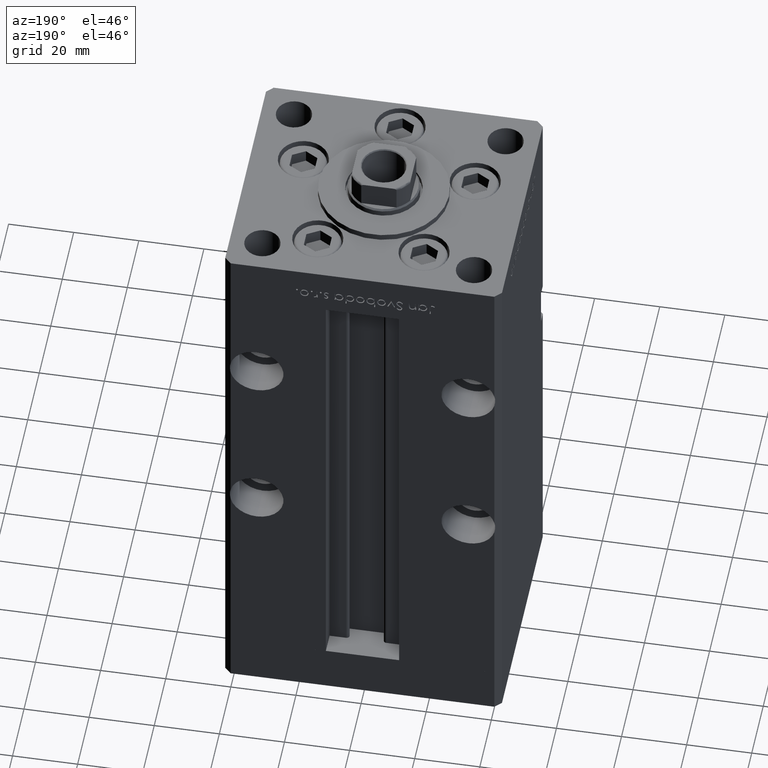
[diagram: clean part render]
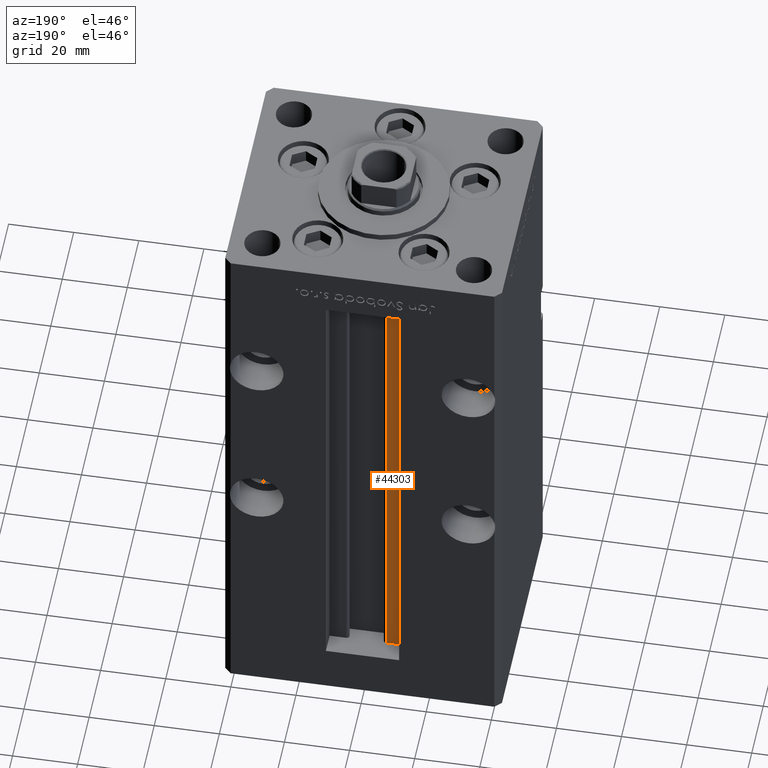
[diagram: same view with one face highlighted and labeled with its STEP entity id]
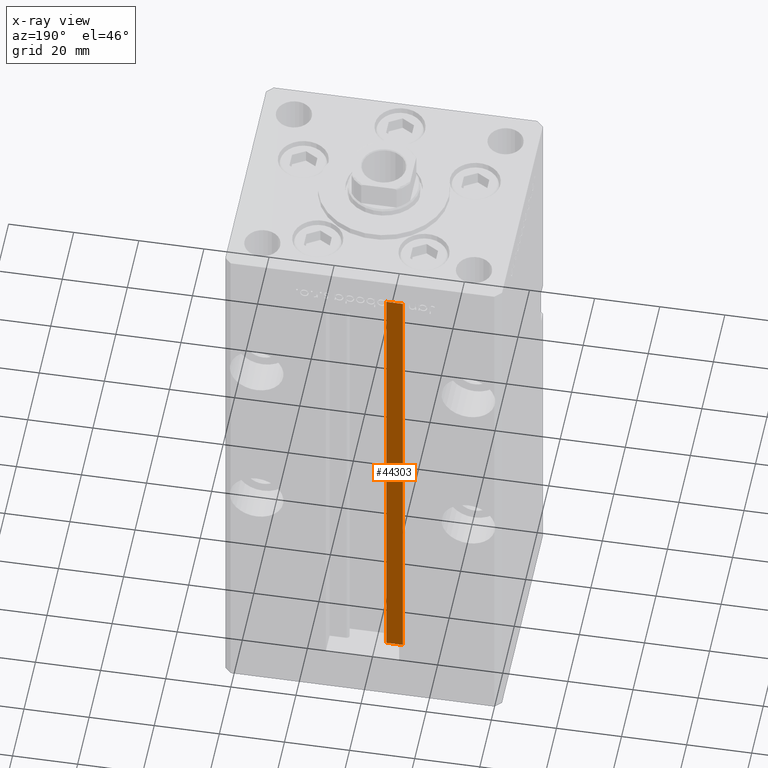
[diagram: x-ray of the same camera — body ghosted, the highlighted face saturated]
A machine part, auxiliary view. The second image highlights one B-rep face of the part: STEP entity #44303.
The next image is the same camera in x-ray: the body ghosted, the highlighted face saturated — about 0% of this face is hidden behind the body in this view.
In plain terms, the highlighted planar face has unit normal (0, -1, 0).
Its self-contained STEP definition (entity closure, byte-faithful):
#4721 = DIRECTION ( 'NONE',  ( -1.000000000000000000, 0.000000000000000000, 0.000000000000000000 ) ) ;
#5127 = CARTESIAN_POINT ( 'NONE',  ( -11.24999999999999822, 31.00000000000000000, 0.000000000000000000 ) ) ;
#6514 = DIRECTION ( 'NONE',  ( 0.000000000000000000, -1.000000000000000000, -0.000000000000000000 ) ) ;
#6784 = FACE_OUTER_BOUND ( 'NONE', #15165, .T. ) ;
#7926 = DIRECTION ( 'NONE',  ( -0.000000000000000000, -0.000000000000000000, 1.000000000000000000 ) ) ;
#8989 = ORIENTED_EDGE ( 'NONE', *, *, #41527, .F. ) ;
#9339 = CARTESIAN_POINT ( 'NONE',  ( -11.24999999999999822, 31.00000000000000000, 148.5000000000000000 ) ) ;
#11153 = EDGE_CURVE ( 'NONE', #12770, #36153, #14903, .T. ) ;
#12087 = EDGE_CURVE ( 'NONE', #16337, #36153, #16812, .T. ) ;
#12770 = VERTEX_POINT ( 'NONE', #5127 ) ;
#14370 = DIRECTION ( 'NONE',  ( -0.000000000000000000, -0.000000000000000000, 1.000000000000000000 ) ) ;
#14903 = LINE ( 'NONE', #39061, #39473 ) ;
#15165 = EDGE_LOOP ( 'NONE', ( #8989, #17966, #24467, #28673 ) ) ;
#16262 = LINE ( 'NONE', #44175, #32460 ) ;
#16337 = VERTEX_POINT ( 'NONE', #30963 ) ;
#16812 = LINE ( 'NONE', #49826, #43797 ) ;
#17966 = ORIENTED_EDGE ( 'NONE', *, *, #44971, .F. ) ;
#20979 = VERTEX_POINT ( 'NONE', #26541 ) ;
#24467 = ORIENTED_EDGE ( 'NONE', *, *, #11153, .T. ) ;
#26541 = CARTESIAN_POINT ( 'NONE',  ( -6.183333333333997928, 31.00000000000000000, 0.000000000000000000 ) ) ;
#26937 = PLANE ( 'NONE',  #36524 ) ;
#28673 = ORIENTED_EDGE ( 'NONE', *, *, #12087, .F. ) ;
#30963 = CARTESIAN_POINT ( 'NONE',  ( -6.183333333333997928, 31.00000000000000000, 148.5000000000000000 ) ) ;
#32460 = VECTOR ( 'NONE', #7926, 1000.000000000000000 ) ;
#34726 = CARTESIAN_POINT ( 'NONE',  ( -6.183333333333997928, 31.00000000000000000, 0.000000000000000000 ) ) ;
#36153 = VERTEX_POINT ( 'NONE', #9339 ) ;
#36393 = LINE ( 'NONE', #49268, #41656 ) ;
#36524 = AXIS2_PLACEMENT_3D ( 'NONE', #34726, #6514, #51357 ) ;
#39061 = CARTESIAN_POINT ( 'NONE',  ( -11.24999999999999822, 31.00000000000000000, 0.000000000000000000 ) ) ;
#39473 = VECTOR ( 'NONE', #14370, 1000.000000000000000 ) ;
#41527 = EDGE_CURVE ( 'NONE', #20979, #16337, #16262, .T. ) ;
#41656 = VECTOR ( 'NONE', #52746, 1000.000000000000000 ) ;
#43797 = VECTOR ( 'NONE', #4721, 1000.000000000000000 ) ;
#44175 = CARTESIAN_POINT ( 'NONE',  ( -6.183333333333997928, 31.00000000000000000, 0.000000000000000000 ) ) ;
#44303 = ADVANCED_FACE ( 'NONE', ( #6784 ), #26937, .F. ) ;
#44971 = EDGE_CURVE ( 'NONE', #12770, #20979, #36393, .T. ) ;
#49268 = CARTESIAN_POINT ( 'NONE',  ( -6.183333333333997928, 31.00000000000000000, 0.000000000000000000 ) ) ;
#49826 = CARTESIAN_POINT ( 'NONE',  ( 0.000000000000000000, 31.00000000000000000, 148.5000000000000000 ) ) ;
#51357 = DIRECTION ( 'NONE',  ( 0.000000000000000000, 0.000000000000000000, -1.000000000000000000 ) ) ;
#52746 = DIRECTION ( 'NONE',  ( 1.000000000000000000, -0.000000000000000000, -0.000000000000000000 ) ) ;